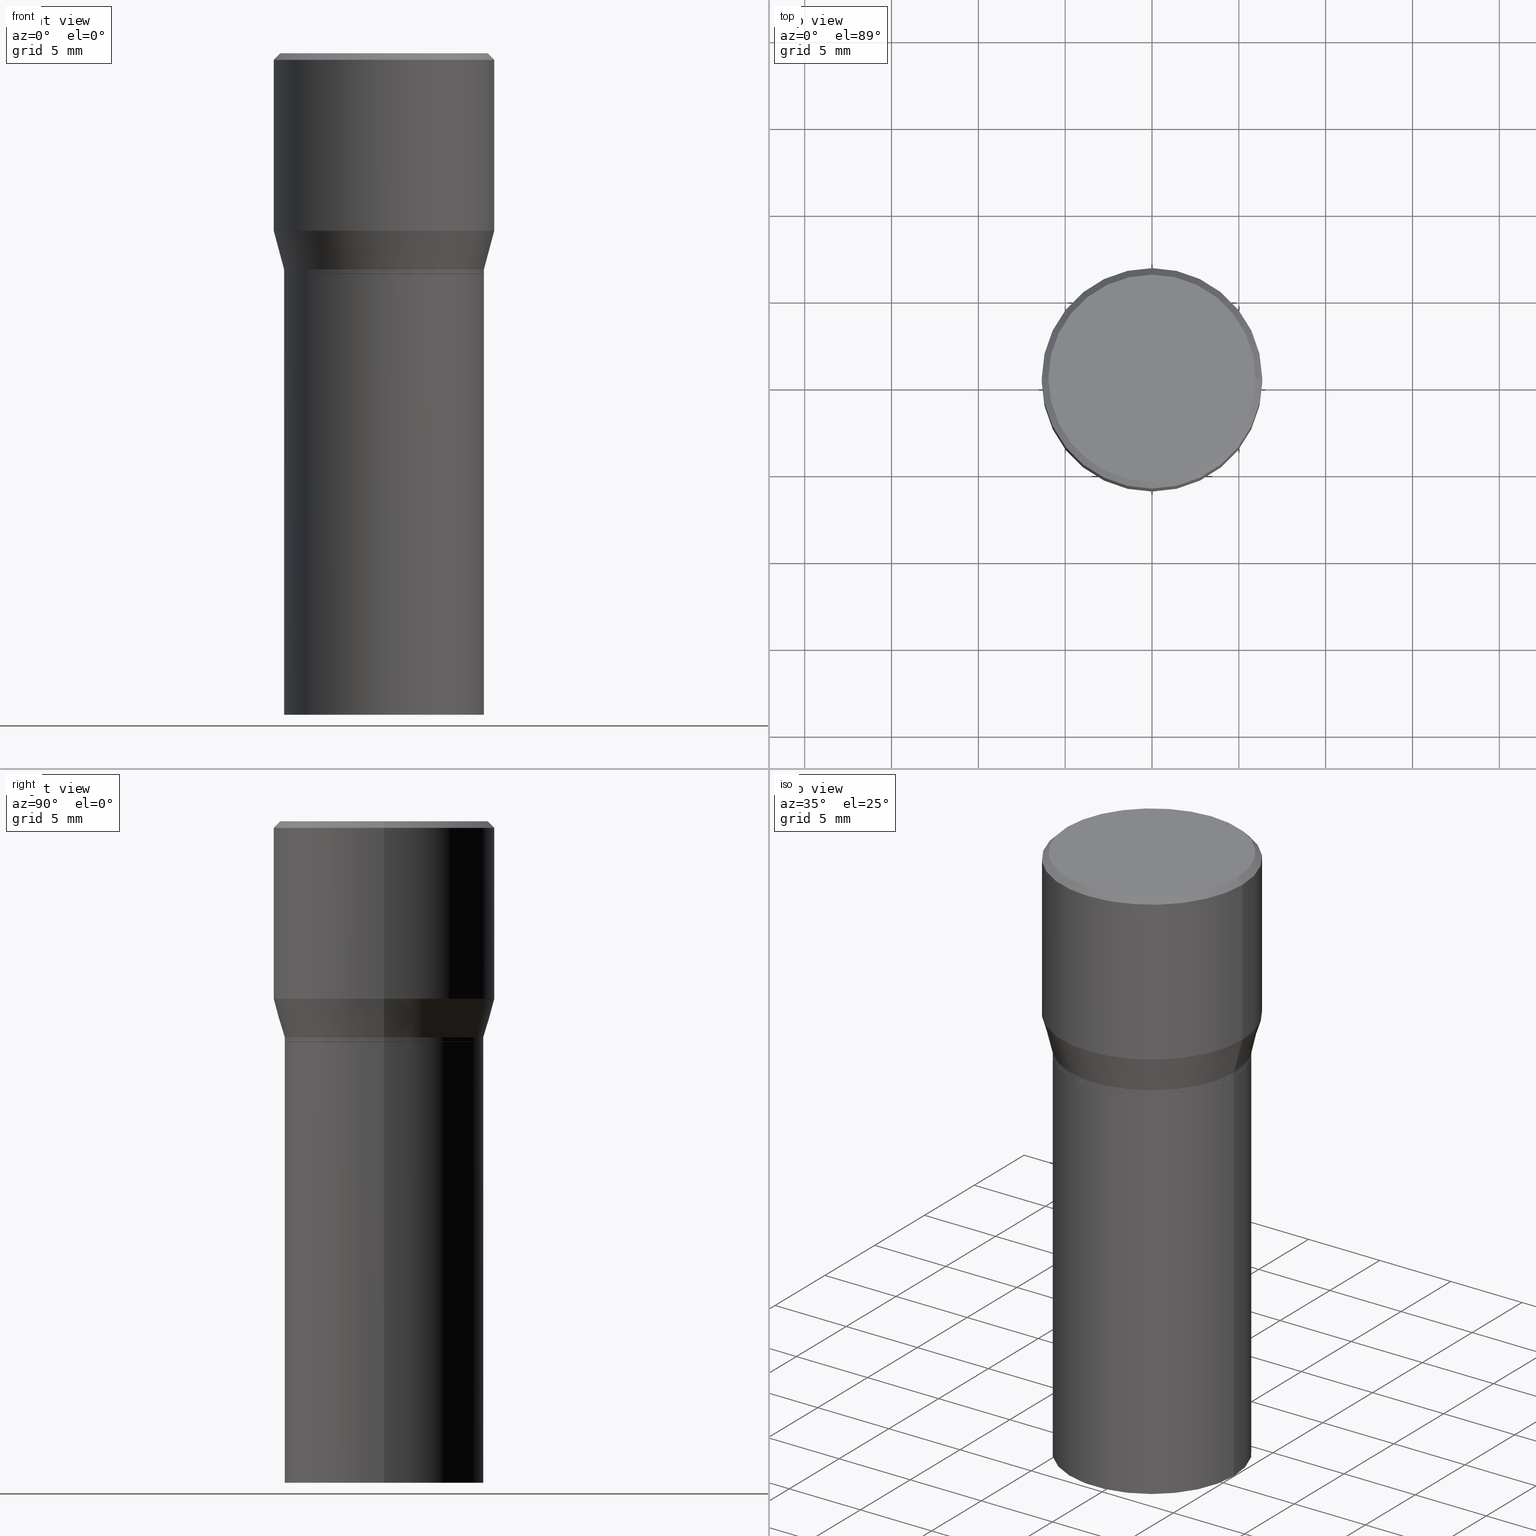
[diagram: canonical four-view strip — front | top / right | iso, engineering-drawing reading convention]
A machine part, canonical four-view strip (front | top / right | iso — engineering-drawing reading convention). The complete STEP part file that produces these views, byte-faithful:
ISO-10303-21;
HEADER;
FILE_DESCRIPTION (( 'STEP AP203' ),
    '1' );
FILE_NAME ('30459.STEP',
    '2024-03-13T16:12:11',
    ( '' ),
    ( '' ),
    'SwSTEP 2.0',
    'SolidWorks 2023',
    '' );
FILE_SCHEMA (( 'CONFIG_CONTROL_DESIGN' ));
ENDSEC;

DATA;
#1 = CARTESIAN_POINT ( 'NONE',  ( 0.2260500000000000009, -3.324239382712553708E-15, -0.5000000000000001110 ) ) ;
#2 = AXIS2_PLACEMENT_3D ( 'NONE', #61, #448, #134 ) ;
#3 = AXIS2_PLACEMENT_3D ( 'NONE', #75, #293, #181 ) ;
#4 = EDGE_LOOP ( 'NONE', ( #408, #412, #331, #193 ) ) ;
#5 = LINE ( 'NONE', #297, #221 ) ;
#6 = EDGE_LOOP ( 'NONE', ( #262, #15, #439, #177 ) ) ;
#7 = CARTESIAN_POINT ( 'NONE',  ( 1.640996229256272519E-15, 0.2349999999999999867, -7.420662724610952803E-16 ) ) ;
#8 = EDGE_CURVE ( 'NONE', #74, #70, #304, .T. ) ;
#9 = ORIENTED_EDGE ( 'NONE', *, *, #217, .F. ) ;
#10 = CLOSED_SHELL ( 'NONE', ( #105, #60, #295, #374, #258, #244, #263, #151, #394, #88, #444, #201 ) ) ;
#11 = ADVANCED_BREP_SHAPE_REPRESENTATION ( '30459', ( #121, #287, #368 ), #317 ) ;
#12 = EDGE_CURVE ( 'NONE', #446, #365, #259, .T. ) ;
#13 = ORIENTED_EDGE ( 'NONE', *, *, #194, .T. ) ;
#14 = ORIENTED_EDGE ( 'NONE', *, *, #270, .F. ) ;
#15 = ORIENTED_EDGE ( 'NONE', *, *, #275, .T. ) ;
#16 = AXIS2_PLACEMENT_3D ( 'NONE', #312, #129, #276 ) ;
#17 = ORIENTED_EDGE ( 'NONE', *, *, #192, .T. ) ;
#18 = PRODUCT_DEFINITION_FORMATION_WITH_SPECIFIED_SOURCE ( 'ANY', '', #286, .NOT_KNOWN. ) ;
#19 = CC_DESIGN_PERSON_AND_ORGANIZATION_ASSIGNMENT ( #32, #318, ( #261 ) ) ;
#20 = DIRECTION ( 'NONE',  ( -2.445468806185136597E-29, 3.491481338843145583E-15, 1.000000000000000000 ) ) ;
#21 = DIRECTION ( 'NONE',  ( -2.445468806185136597E-29, 3.491481338843145583E-15, 1.000000000000000000 ) ) ;
#22 = DIRECTION ( 'NONE',  ( -1.000000000000000000, 6.982962677686266711E-15, 0.000000000000000000 ) ) ;
#23 = APPROVAL_DATE_TIME ( #98, #268 ) ;
#24 = APPROVAL_ROLE ( '' ) ;
#25 = DIRECTION ( 'NONE',  ( 1.000000000000000000, -6.982962677686265922E-15, 0.000000000000000000 ) ) ;
#26 = VECTOR ( 'NONE', #380, 39.37007874015748143 ) ;
#27 = PERSON_AND_ORGANIZATION ( #29, #426 ) ;
#28 = DIRECTION ( 'NONE',  ( 1.000000000000000000, -6.982962677686267499E-15, 4.878549297894958458E-29 ) ) ;
#29 = PERSON ( 'UNSPECIFIED', 'UNSPECIFIED', 'UNSPECIFIED', ('UNSPECIFIED'), ('UNSPECIFIED'), ('UNSPECIFIED') ) ;
#30 = SHAPE_DEFINITION_REPRESENTATION ( #207, #11 ) ;
#31 = FACE_OUTER_BOUND ( 'NONE', #409, .T. ) ;
#32 = PERSON_AND_ORGANIZATION ( #29, #426 ) ;
#33 = CARTESIAN_POINT ( 'NONE',  ( 0.000000000000000000, 0.000000000000000000, 0.000000000000000000 ) ) ;
#34 = DIRECTION ( 'NONE',  ( 1.000000000000000000, -6.982962677686265922E-15, 0.000000000000000000 ) ) ;
#35 = CC_DESIGN_SECURITY_CLASSIFICATION ( #261, ( #18 ) ) ;
#36 = LENGTH_MEASURE_WITH_UNIT ( LENGTH_MEASURE( 0.02539999999999999897 ), #358 );
#37 = CARTESIAN_POINT ( 'NONE',  ( 1.221511668689476057E-29, -1.743994928752151682E-15, -0.4995000000000001661 ) ) ;
#38 = EDGE_LOOP ( 'NONE', ( #13, #249, #158, #14 ) ) ;
#39 = DIRECTION ( 'NONE',  ( -1.000000000000000000, 6.982962677686265922E-15, -4.876176775795935793E-29 ) ) ;
#40 = DIRECTION ( 'NONE',  ( 2.438088387897960049E-29, -3.491481338843145188E-15, -1.000000000000000000 ) ) ;
#41 = DIRECTION ( 'NONE',  ( 1.000000000000000000, -6.982962677686267499E-15, 0.000000000000000000 ) ) ;
#42 = DIRECTION ( 'NONE',  ( 1.000000000000000000, -6.982962677686265922E-15, 0.000000000000000000 ) ) ;
#43 = EDGE_LOOP ( 'NONE', ( #376, #9, #161, #218 ) ) ;
#44 = EDGE_CURVE ( 'NONE', #231, #86, #196, .T. ) ;
#45 = ORIENTED_EDGE ( 'NONE', *, *, #53, .F. ) ;
#46 = ORIENTED_EDGE ( 'NONE', *, *, #69, .T. ) ;
#47 = CIRCLE ( 'NONE', #375, 0.2500000000000000000 ) ;
#48 = VECTOR ( 'NONE', #240, 39.37007874015748143 ) ;
#49 = ORIENTED_EDGE ( 'NONE', *, *, #361, .T. ) ;
#50 = ORIENTED_EDGE ( 'NONE', *, *, #127, .F. ) ;
#51 = ORIENTED_EDGE ( 'NONE', *, *, #182, .F. ) ;
#52 = CARTESIAN_POINT ( 'NONE',  ( 0.2265500000000000014, -1.581990194629823726E-15, 1.104697848556569281E-29 ) ) ;
#53 = EDGE_CURVE ( 'NONE', #74, #337, #82, .T. ) ;
#54 = DIRECTION ( 'NONE',  ( 1.000000000000000000, -6.982962677686266711E-15, 0.000000000000000000 ) ) ;
#55 = EDGE_CURVE ( 'NONE', #431, #81, #47, .T. ) ;
#56 = COORDINATED_UNIVERSAL_TIME_OFFSET ( 5, 0, .BEHIND. ) ;
#57 = DIRECTION ( 'NONE',  ( -2.445468806185136597E-29, 3.491481338843145583E-15, 1.000000000000000000 ) ) ;
#58 = VECTOR ( 'NONE', #418, 39.37007874015748143 ) ;
#59 = DATE_AND_TIME ( #96, #188 ) ;
#60 = ADVANCED_FACE ( 'NONE', ( #165 ), #433, .T. ) ;
#61 = CARTESIAN_POINT ( 'NONE',  ( 3.668203209277705088E-31, -5.237222008264718399E-17, -0.01499999999999999944 ) ) ;
#62 = CARTESIAN_POINT ( 'NONE',  ( -0.2349999999999999867, 1.667182339297596256E-15, 1.568636843340762393E-16 ) ) ;
#63 = DESIGN_CONTEXT ( 'detailed design', #464, 'design' ) ;
#64 = DIRECTION ( 'NONE',  ( 0.7071067811865715536, -2.468850131082509496E-15, 0.7071067811865232589 ) ) ;
#65 = CARTESIAN_POINT ( 'NONE',  ( 1.221511668689476057E-29, -1.743994928752151682E-15, -0.4995000000000001661 ) ) ;
#66 = ORIENTED_EDGE ( 'NONE', *, *, #217, .T. ) ;
#67 = DIRECTION ( 'NONE',  ( 1.000000000000000000, -6.982962677686265922E-15, 0.000000000000000000 ) ) ;
#68 = CIRCLE ( 'NONE', #453, 0.2265499999999999736 ) ;
#69 = EDGE_CURVE ( 'NONE', #86, #310, #227, .T. ) ;
#70 = VERTEX_POINT ( 'NONE', #352 ) ;
#71 = DIRECTION ( 'NONE',  ( -2.445468806185136597E-29, 3.491481338843145583E-15, 1.000000000000000000 ) ) ;
#72 = EDGE_LOOP ( 'NONE', ( #230, #223 ) ) ;
#73 = CARTESIAN_POINT ( 'NONE',  ( -0.2265500000000000014, -1.881746770978639193E-15, -0.5000000000000001110 ) ) ;
#74 = VERTEX_POINT ( 'NONE', #99 ) ;
#75 = CARTESIAN_POINT ( 'NONE',  ( 0.000000000000000000, 0.000000000000000000, 0.000000000000000000 ) ) ;
#76 = VECTOR ( 'NONE', #225, 39.37007874015748143 ) ;
#77 = CIRCLE ( 'NONE', #316, 0.2500000000000000000 ) ;
#78 = ORIENTED_EDGE ( 'NONE', *, *, #44, .F. ) ;
#79 = CC_DESIGN_PERSON_AND_ORGANIZATION_ASSIGNMENT ( #393, #350, ( #18 ) ) ;
#80 = ORIENTED_EDGE ( 'NONE', *, *, #361, .F. ) ;
#81 = VERTEX_POINT ( 'NONE', #200 ) ;
#82 = CIRCLE ( 'NONE', #315, 0.2349999999999999867 ) ;
#83 = AXIS2_PLACEMENT_3D ( 'NONE', #363, #366, #39 ) ;
#84 = LOCAL_TIME ( 12, 12, 11.00000000000000000, #56 ) ;
#85 = ORIENTED_EDGE ( 'NONE', *, *, #170, .T. ) ;
#86 = VERTEX_POINT ( 'NONE', #425 ) ;
#87 = ORIENTED_EDGE ( 'NONE', *, *, #69, .F. ) ;
#88 = ADVANCED_FACE ( 'NONE', ( #31 ), #234, .F. ) ;
#89 = DIRECTION ( 'NONE',  ( 1.000000000000000000, -6.982962677686266711E-15, 0.000000000000000000 ) ) ;
#90 = CALENDAR_DATE ( 2024, 13, 3 ) ;
#91 = LINE ( 'NONE', #383, #123 ) ;
#92 = CARTESIAN_POINT ( 'NONE',  ( -0.2265499999999999736, 1.350011205208151600E-16, -0.4900000000000001021 ) ) ;
#93 = PERSON_AND_ORGANIZATION_ROLE ( 'design_supplier' ) ;
#94 = EDGE_CURVE ( 'NONE', #185, #70, #205, .T. ) ;
#95 = CARTESIAN_POINT ( 'NONE',  ( 3.668203209277705088E-31, -5.237222008264718399E-17, -0.01499999999999999944 ) ) ;
#96 = CALENDAR_DATE ( 2024, 13, 3 ) ;
#97 = FACE_OUTER_BOUND ( 'NONE', #445, .T. ) ;
#98 = DATE_AND_TIME ( #288, #84 ) ;
#99 = CARTESIAN_POINT ( 'NONE',  ( 0.2349999999999999867, -1.689856874500919833E-15, 1.568636843340994368E-16 ) ) ;
#100 = AXIS2_PLACEMENT_3D ( 'NONE', #113, #401, #34 ) ;
#101 = PERSON_AND_ORGANIZATION ( #29, #426 ) ;
#102 = LINE ( 'NONE', #274, #58 ) ;
#103 = CARTESIAN_POINT ( 'NONE',  ( -0.2500000000000000000, 1.047539074263934229E-15, -0.01499999999999999944 ) ) ;
#104 = DIRECTION ( 'NONE',  ( 1.000000000000000000, -6.982962677686266711E-15, 0.000000000000000000 ) ) ;
#105 = ADVANCED_FACE ( 'NONE', ( #239 ), #136, .T. ) ;
#106 = DIRECTION ( 'NONE',  ( 2.445468806185136597E-29, -3.491481338843145583E-15, -1.000000000000000000 ) ) ;
#107 = FACE_OUTER_BOUND ( 'NONE', #6, .T. ) ;
#108 = EDGE_LOOP ( 'NONE', ( #50, #441, #122, #326 ) ) ;
#109 = VECTOR ( 'NONE', #64, 39.37007874015748854 ) ;
#110 = DIRECTION ( 'NONE',  ( 0.2588190451025214611, 1.565188264969621573E-15, 0.9659258262890682012 ) ) ;
#111 = AXIS2_PLACEMENT_3D ( 'NONE', #219, #115, #435 ) ;
#112 = PLANE ( 'NONE',  #392 ) ;
#113 = CARTESIAN_POINT ( 'NONE',  ( 9.842606206466859638E-30, -1.405263310189985589E-15, -0.4024834085625100810 ) ) ;
#114 = EDGE_CURVE ( 'NONE', #81, #185, #102, .T. ) ;
#115 = DIRECTION ( 'NONE',  ( -2.445468806185136597E-29, 3.491481338843145583E-15, 1.000000000000000000 ) ) ;
#116 = PRODUCT_DEFINITION ( 'UNKNOWN', '', #18, #63 ) ;
#117 = AXIS2_PLACEMENT_3D ( 'NONE', #248, #303, #104 ) ;
#118 = CC_DESIGN_APPROVAL ( #163, ( #18 ) ) ;
#119 = CARTESIAN_POINT ( 'NONE',  ( 0.2500000000000000000, -1.767496719525530167E-15, -0.01499999999999999944 ) ) ;
#120 = ORIENTED_EDGE ( 'NONE', *, *, #142, .T. ) ;
#121 = MANIFOLD_SOLID_BREP ( 'Body-Move/Copy2[1]', #336 ) ;
#122 = ORIENTED_EDGE ( 'NONE', *, *, #44, .T. ) ;
#123 = VECTOR ( 'NONE', #197, 39.37007874015748143 ) ;
#124 = AXIS2_PLACEMENT_3D ( 'NONE', #247, #178, #41 ) ;
#125 = DIMENSIONAL_EXPONENTS ( 1.000000000000000000, 0.000000000000000000, 0.000000000000000000, 0.000000000000000000, 0.000000000000000000, 0.000000000000000000, 0.000000000000000000 ) ;
#126 = ORIENTED_EDGE ( 'NONE', *, *, #154, .F. ) ;
#127 = EDGE_CURVE ( 'NONE', #266, #310, #91, .T. ) ;
#128 = ORIENTED_EDGE ( 'NONE', *, *, #127, .T. ) ;
#129 = DIRECTION ( 'NONE',  ( -2.445468806185136597E-29, 3.491481338843145583E-15, 1.000000000000000000 ) ) ;
#130 = DIRECTION ( 'NONE',  ( -2.445468806185136597E-29, 3.491481338843145583E-15, 1.000000000000000000 ) ) ;
#131 = APPROVAL_PERSON_ORGANIZATION ( #277, #268, #24 ) ;
#132 = LINE ( 'NONE', #422, #26 ) ;
#133 = CALENDAR_DATE ( 2024, 13, 3 ) ;
#134 = DIRECTION ( 'NONE',  ( 1.000000000000000000, -6.982962677686266711E-15, 0.000000000000000000 ) ) ;
#135 = PERSON_AND_ORGANIZATION ( #29, #426 ) ;
#136 = CYLINDRICAL_SURFACE ( 'NONE', #328, 0.2265500000000000014 ) ;
#137 = APPROVAL_STATUS ( 'not_yet_approved' ) ;
#138 = DIRECTION ( 'NONE',  ( -2.445468806185136597E-29, 3.491481338843145583E-15, 1.000000000000000000 ) ) ;
#139 = DIRECTION ( 'NONE',  ( -0.7071067811865715536, 7.493145998870439357E-15, 0.7071067811865232589 ) ) ;
#140 = CIRCLE ( 'NONE', #267, 0.2349999999999999867 ) ;
#141 = DIRECTION ( 'NONE',  ( 1.000000000000000000, -6.982962677686266711E-15, 4.876176775795935793E-29 ) ) ;
#142 = EDGE_CURVE ( 'NONE', #310, #81, #144, .T. ) ;
#143 = FACE_OUTER_BOUND ( 'NONE', #229, .T. ) ;
#144 = LINE ( 'NONE', #436, #243 ) ;
#145 = DIRECTION ( 'NONE',  ( -2.445468806185136597E-29, 3.491481338843145583E-15, 1.000000000000000000 ) ) ;
#146 = AXIS2_PLACEMENT_3D ( 'NONE', #280, #344, #242 ) ;
#147 = AXIS2_PLACEMENT_3D ( 'NONE', #427, #211, #175 ) ;
#148 = CARTESIAN_POINT ( 'NONE',  ( 0.2265500000000000014, -3.325985123381975211E-15, -0.4995000000000001661 ) ) ;
#149 = DIRECTION ( 'NONE',  ( 1.000000000000000000, -6.982962677686265922E-15, 4.876176775795935793E-29 ) ) ;
#150 = CARTESIAN_POINT ( 'NONE',  ( 0.000000000000000000, 0.000000000000000000, 0.000000000000000000 ) ) ;
#151 = ADVANCED_FACE ( 'NONE', ( #371 ), #206, .T. ) ;
#152 = CARTESIAN_POINT ( 'NONE',  ( -0.2265500000000000014, -1.342603608876448985E-16, -0.4995000000000001661 ) ) ;
#153 = DIRECTION ( 'NONE',  ( -1.000000000000000000, 6.982962677686265922E-15, -4.876176775795935793E-29 ) ) ;
#154 = EDGE_CURVE ( 'NONE', #81, #431, #348, .T. ) ;
#155 = ORIENTED_EDGE ( 'NONE', *, *, #308, .T. ) ;
#156 = AXIS2_PLACEMENT_3D ( 'NONE', #202, #20, #89 ) ;
#157 = APPROVAL_PERSON_ORGANIZATION ( #273, #163, #245 ) ;
#158 = ORIENTED_EDGE ( 'NONE', *, *, #174, .F. ) ;
#159 = CARTESIAN_POINT ( 'NONE',  ( 0.000000000000000000, 0.000000000000000000, 0.000000000000000000 ) ) ;
#160 = VERTEX_POINT ( 'NONE', #73 ) ;
#161 = ORIENTED_EDGE ( 'NONE', *, *, #182, .T. ) ;
#162 = ORIENTED_EDGE ( 'NONE', *, *, #311, .T. ) ;
#163 = APPROVAL ( #137, 'UNSPECIFIED' ) ;
#164 = DIRECTION ( 'NONE',  ( 1.000000000000000000, -6.982962677686267499E-15, 0.000000000000000000 ) ) ;
#165 = FACE_OUTER_BOUND ( 'NONE', #306, .T. ) ;
#166 = CALENDAR_DATE ( 2024, 13, 3 ) ;
#167 = DIRECTION ( 'NONE',  ( 1.000000000000000000, 0.000000000000000000, 0.000000000000000000 ) ) ;
#168 = FACE_OUTER_BOUND ( 'NONE', #191, .T. ) ;
#169 = DIRECTION ( 'NONE',  ( -0.7071067811865441310, 2.468850131082221167E-15, -0.7071067811865509034 ) ) ;
#170 = EDGE_CURVE ( 'NONE', #231, #266, #333, .T. ) ;
#171 = CIRCLE ( 'NONE', #156, 0.2260500000000000009 ) ;
#172 = LINE ( 'NONE', #432, #235 ) ;
#173 =( NAMED_UNIT ( * ) PLANE_ANGLE_UNIT ( ) SI_UNIT ( $, .RADIAN. ) );
#174 = EDGE_CURVE ( 'NONE', #271, #160, #278, .T. ) ;
#175 = DIRECTION ( 'NONE',  ( 1.000000000000000000, -6.982962677686265922E-15, 0.000000000000000000 ) ) ;
#176 = CARTESIAN_POINT ( 'NONE',  ( 0.000000000000000000, 0.000000000000000000, 0.000000000000000000 ) ) ;
#177 = ORIENTED_EDGE ( 'NONE', *, *, #450, .F. ) ;
#178 = DIRECTION ( 'NONE',  ( -2.445468806185136597E-29, 3.491481338843145583E-15, 1.000000000000000000 ) ) ;
#179 =( CONVERSION_BASED_UNIT ( 'INCH', #36 ) LENGTH_UNIT ( ) NAMED_UNIT ( #125 ) );
#180 = AXIS2_PLACEMENT_3D ( 'NONE', #65, #145, #42 ) ;
#181 = DIRECTION ( 'NONE',  ( 1.000000000000000000, -6.982962677686266711E-15, 4.876176775795935793E-29 ) ) ;
#182 = EDGE_CURVE ( 'NONE', #337, #185, #5, .T. ) ;
#183 = ORIENTED_EDGE ( 'NONE', *, *, #388, .F. ) ;
#184 = EDGE_CURVE ( 'NONE', #86, #431, #172, .T. ) ;
#185 = VERTEX_POINT ( 'NONE', #103 ) ;
#186 = CYLINDRICAL_SURFACE ( 'NONE', #405, 0.2500000000000000000 ) ;
#187 = CONICAL_SURFACE ( 'NONE', #147, 0.2265499999999999736, 0.2617993877991501295 ) ;
#188 = LOCAL_TIME ( 12, 12, 11.00000000000000000, #452 ) ;
#189 = ADVANCED_FACE ( 'NONE', ( #460 ), #254, .F. ) ;
#190 = VERTEX_POINT ( 'NONE', #462 ) ;
#191 = EDGE_LOOP ( 'NONE', ( #443, #269, #80, #183 ) ) ;
#192 = EDGE_CURVE ( 'NONE', #160, #271, #321, .T. ) ;
#193 = ORIENTED_EDGE ( 'NONE', *, *, #94, .F. ) ;
#194 = EDGE_CURVE ( 'NONE', #365, #446, #290, .T. ) ;
#195 = VECTOR ( 'NONE', #466, 39.37007874015748143 ) ;
#196 = LINE ( 'NONE', #52, #338 ) ;
#197 = DIRECTION ( 'NONE',  ( -2.445468806185136877E-29, 3.491481338843145188E-15, 1.000000000000000000 ) ) ;
#198 = DIRECTION ( 'NONE',  ( 1.000000000000000000, -6.982962677686266711E-15, 4.876176775795935793E-29 ) ) ;
#199 = APPROVAL_STATUS ( 'not_yet_approved' ) ;
#200 = CARTESIAN_POINT ( 'NONE',  ( -0.2500000000000000000, 3.710935292102651716E-16, -0.4024834085625100810 ) ) ;
#201 = ADVANCED_FACE ( 'NONE', ( #404 ), #327, .T. ) ;
#202 = CARTESIAN_POINT ( 'NONE',  ( 1.222734403092568719E-29, -1.745740669421573186E-15, -0.5000000000000001110 ) ) ;
#203 = APPLICATION_PROTOCOL_DEFINITION ( 'international standard', 'config_control_design', 1994, #442 ) ;
#204 = LINE ( 'NONE', #384, #48 ) ;
#205 = CIRCLE ( 'NONE', #2, 0.2500000000000000000 ) ;
#206 = CONICAL_SURFACE ( 'NONE', #339, 0.2500000000000000000, 0.7853981633974435050 ) ;
#207 = PRODUCT_DEFINITION_SHAPE ( 'NONE', 'NONE',  #116 ) ;
#208 = DATE_TIME_ROLE ( 'creation_date' ) ;
#209 = DIRECTION ( 'NONE',  ( 1.000000000000000000, -6.982962677686266711E-15, 4.876176775795935793E-29 ) ) ;
#210 = CARTESIAN_POINT ( 'NONE',  ( -0.2260500000000000009, -1.395588152358667583E-16, -0.5000000000000001110 ) ) ;
#211 = DIRECTION ( 'NONE',  ( -2.445468806185136597E-29, 3.491481338843145583E-15, 1.000000000000000000 ) ) ;
#212 = DIRECTION ( 'NONE',  ( -2.438088387897960049E-29, 3.491481338843145188E-15, 1.000000000000000000 ) ) ;
#213 = CONICAL_SURFACE ( 'NONE', #359, 0.2265499999999999736, 0.2617993877991501295 ) ;
#214 = FACE_OUTER_BOUND ( 'NONE', #4, .T. ) ;
#215 = DIRECTION ( 'NONE',  ( -2.445468806185136597E-29, 3.491481338843145583E-15, 1.000000000000000000 ) ) ;
#216 = DIRECTION ( 'NONE',  ( 1.000000000000000000, -6.982962677686266711E-15, 0.000000000000000000 ) ) ;
#217 = EDGE_CURVE ( 'NONE', #337, #74, #140, .T. ) ;
#218 = ORIENTED_EDGE ( 'NONE', *, *, #94, .T. ) ;
#219 = CARTESIAN_POINT ( 'NONE',  ( 1.222734403092568719E-29, -1.745740669421573186E-15, -0.5000000000000001110 ) ) ;
#220 = ORIENTED_EDGE ( 'NONE', *, *, #142, .F. ) ;
#221 = VECTOR ( 'NONE', #169, 39.37007874015748143 ) ;
#222 = LINE ( 'NONE', #396, #195 ) ;
#223 = ORIENTED_EDGE ( 'NONE', *, *, #12, .F. ) ;
#224 = EDGE_CURVE ( 'NONE', #253, #231, #465, .T. ) ;
#225 = DIRECTION ( 'NONE',  ( 0.7071067811865441310, -7.319954787623245001E-15, -0.7071067811865509034 ) ) ;
#226 = EDGE_LOOP ( 'NONE', ( #85, #128, #87, #78 ) ) ;
#227 = CIRCLE ( 'NONE', #299, 0.2265499999999999736 ) ;
#228 = AXIS2_PLACEMENT_3D ( 'NONE', #298, #212, #149 ) ;
#229 = EDGE_LOOP ( 'NONE', ( #46, #120, #309, #447 ) ) ;
#230 = ORIENTED_EDGE ( 'NONE', *, *, #194, .F. ) ;
#231 = VERTEX_POINT ( 'NONE', #148 ) ;
#232 = CARTESIAN_POINT ( 'NONE',  ( 1.198279715030717173E-29, -1.710825856033141537E-15, -0.4900000000000001021 ) ) ;
#233 = COORDINATED_UNIVERSAL_TIME_OFFSET ( 5, 0, .BEHIND. ) ;
#234 = PLANE ( 'NONE',  #146 ) ;
#235 = VECTOR ( 'NONE', #110, 39.37007874015747433 ) ;
#236 = DIRECTION ( 'NONE',  ( -2.445468806185136597E-29, 3.491481338843145583E-15, 1.000000000000000000 ) ) ;
#237 = ADVANCED_FACE ( 'NONE', ( #330 ), #300, .T. ) ;
#238 = PERSON_AND_ORGANIZATION_ROLE ( 'creator' ) ;
#239 = FACE_OUTER_BOUND ( 'NONE', #226, .T. ) ;
#240 = DIRECTION ( 'NONE',  ( -2.445468806185136877E-29, 3.491481338843145188E-15, 1.000000000000000000 ) ) ;
#241 = APPROVAL_ROLE ( '' ) ;
#242 = DIRECTION ( 'NONE',  ( 1.000000000000000000, -6.982962677686265922E-15, 4.876176775795935793E-29 ) ) ;
#243 = VECTOR ( 'NONE', #360, 39.37007874015747433 ) ;
#244 = ADVANCED_FACE ( 'NONE', ( #291 ), #187, .T. ) ;
#245 = APPROVAL_ROLE ( '' ) ;
#246 = DIRECTION ( 'NONE',  ( 1.000000000000000000, -6.982962677686266711E-15, 0.000000000000000000 ) ) ;
#247 = CARTESIAN_POINT ( 'NONE',  ( 3.668203209277704895E-29, -5.237222008264718177E-15, -1.500000000000000222 ) ) ;
#248 = CARTESIAN_POINT ( 'NONE',  ( 1.222734403092568719E-29, -1.745740669421573186E-15, -0.5000000000000001110 ) ) ;
#249 = ORIENTED_EDGE ( 'NONE', *, *, #357, .T. ) ;
#250 = DIRECTION ( 'NONE',  ( 1.000000000000000000, -6.982962677686265922E-15, 0.000000000000000000 ) ) ;
#251 = AXIS2_PLACEMENT_3D ( 'NONE', #95, #342, #22 ) ;
#252 = LOCAL_TIME ( 12, 12, 11.00000000000000000, #233 ) ;
#253 = VERTEX_POINT ( 'NONE', #356 ) ;
#254 = PLANE ( 'NONE',  #83 ) ;
#255 = CYLINDRICAL_SURFACE ( 'NONE', #260, 0.2500000000000000000 ) ;
#256 = CARTESIAN_POINT ( 'NONE',  ( 3.668203209277705088E-31, -5.237222008264718399E-17, -0.01499999999999999944 ) ) ;
#257 = DIRECTION ( 'NONE',  ( -1.000000000000000000, 6.982962677686266711E-15, 0.000000000000000000 ) ) ;
#258 = ADVANCED_FACE ( 'NONE', ( #143 ), #213, .T. ) ;
#259 = CIRCLE ( 'NONE', #451, 0.2265500000000000014 ) ;
#260 = AXIS2_PLACEMENT_3D ( 'NONE', #176, #367, #325 ) ;
#261 = SECURITY_CLASSIFICATION ( '', '', #314 ) ;
#262 = ORIENTED_EDGE ( 'NONE', *, *, #311, .F. ) ;
#263 = ADVANCED_FACE ( 'NONE', ( #214 ), #186, .T. ) ;
#264 = EDGE_LOOP ( 'NONE', ( #66, #378 ) ) ;
#265 = DIRECTION ( 'NONE',  ( -2.445468806185136597E-29, 3.491481338843145583E-15, 1.000000000000000000 ) ) ;
#266 = VERTEX_POINT ( 'NONE', #152 ) ;
#267 = AXIS2_PLACEMENT_3D ( 'NONE', #320, #324, #322 ) ;
#268 = APPROVAL ( #199, 'UNSPECIFIED' ) ;
#269 = ORIENTED_EDGE ( 'NONE', *, *, #114, .T. ) ;
#270 = EDGE_CURVE ( 'NONE', #365, #271, #132, .T. ) ;
#271 = VERTEX_POINT ( 'NONE', #272 ) ;
#272 = CARTESIAN_POINT ( 'NONE',  ( 0.2265500000000000014, -3.327730864051397109E-15, -0.5000000000000001110 ) ) ;
#273 = PERSON_AND_ORGANIZATION ( #29, #426 ) ;
#274 = CARTESIAN_POINT ( 'NONE',  ( -0.2500000000000000000, 1.776356839400250465E-15, -1.229733772563726445E-29 ) ) ;
#275 = EDGE_CURVE ( 'NONE', #190, #253, #171, .T. ) ;
#276 = DIRECTION ( 'NONE',  ( 1.000000000000000000, -6.982962677686266711E-15, 0.000000000000000000 ) ) ;
#277 = PERSON_AND_ORGANIZATION ( #29, #426 ) ;
#278 = CIRCLE ( 'NONE', #420, 0.2265500000000000014 ) ;
#279 = DATE_AND_TIME ( #90, #252 ) ;
#280 = CARTESIAN_POINT ( 'NONE',  ( 1.222734403092568719E-29, -1.745740669421573186E-15, -0.5000000000000001110 ) ) ;
#281 = EDGE_CURVE ( 'NONE', #310, #86, #68, .T. ) ;
#282 = CYLINDRICAL_SURFACE ( 'NONE', #329, 0.2265500000000000014 ) ;
#283 = DIRECTION ( 'NONE',  ( 1.000000000000000000, -6.982962677686265922E-15, 0.000000000000000000 ) ) ;
#284 = DIRECTION ( 'NONE',  ( 0.000000000000000000, 0.000000000000000000, 1.000000000000000000 ) ) ;
#285 = CARTESIAN_POINT ( 'NONE',  ( 0.000000000000000000, 0.000000000000000000, 0.000000000000000000 ) ) ;
#286 = PRODUCT ( '30459', '30459', '', ( #385 ) ) ;
#287 = MANIFOLD_SOLID_BREP ( 'Body-Move/Copy2[2]', #10 ) ;
#288 = CALENDAR_DATE ( 2024, 13, 3 ) ;
#289 = CARTESIAN_POINT ( 'NONE',  ( 9.842606206466859638E-30, -1.405263310189985589E-15, -0.4024834085625100810 ) ) ;
#290 = CIRCLE ( 'NONE', #124, 0.2265500000000000014 ) ;
#291 = FACE_OUTER_BOUND ( 'NONE', #413, .T. ) ;
#292 = PRODUCT_RELATED_PRODUCT_CATEGORY ( 'detail', '', ( #286 ) ) ;
#293 = DIRECTION ( 'NONE',  ( -2.445468806185136597E-29, 3.491481338843145583E-15, 1.000000000000000000 ) ) ;
#294 = FACE_OUTER_BOUND ( 'NONE', #264, .T. ) ;
#295 = ADVANCED_FACE ( 'NONE', ( #97 ), #440, .T. ) ;
#296 = ORIENTED_EDGE ( 'NONE', *, *, #12, .T. ) ;
#297 = CARTESIAN_POINT ( 'NONE',  ( -0.2500000000000000000, 1.693368449338919401E-15, -0.01499999999999999944 ) ) ;
#298 = CARTESIAN_POINT ( 'NONE',  ( 3.576687321579069994E-29, -5.368277968210015545E-15, -1.500000000000000222 ) ) ;
#299 = AXIS2_PLACEMENT_3D ( 'NONE', #421, #130, #386 ) ;
#300 = CYLINDRICAL_SURFACE ( 'NONE', #305, 0.2265500000000000014 ) ;
#301 = DIRECTION ( 'NONE',  ( -2.445468806185136597E-29, 3.491481338843145583E-15, 1.000000000000000000 ) ) ;
#302 = ORIENTED_EDGE ( 'NONE', *, *, #184, .T. ) ;
#303 = DIRECTION ( 'NONE',  ( -2.445468806185136597E-29, 3.491481338843145583E-15, 1.000000000000000000 ) ) ;
#304 = LINE ( 'NONE', #119, #76 ) ;
#305 = AXIS2_PLACEMENT_3D ( 'NONE', #150, #301, #141 ) ;
#306 = EDGE_LOOP ( 'NONE', ( #155, #162, #373, #400 ) ) ;
#307 = EDGE_LOOP ( 'NONE', ( #402, #17 ) ) ;
#308 = EDGE_CURVE ( 'NONE', #253, #190, #461, .T. ) ;
#309 = ORIENTED_EDGE ( 'NONE', *, *, #55, .F. ) ;
#310 = VERTEX_POINT ( 'NONE', #92 ) ;
#311 = EDGE_CURVE ( 'NONE', #190, #266, #428, .T. ) ;
#312 = CARTESIAN_POINT ( 'NONE',  ( 1.222734403092568719E-29, -1.745740669421573186E-15, -0.5000000000000001110 ) ) ;
#313 = CARTESIAN_POINT ( 'NONE',  ( -3.836052468622837406E-45, 5.476866265946494270E-31, 1.568636843340877764E-16 ) ) ;
#314 = SECURITY_CLASSIFICATION_LEVEL ( 'unclassified' ) ;
#315 = AXIS2_PLACEMENT_3D ( 'NONE', #313, #215, #28 ) ;
#316 = AXIS2_PLACEMENT_3D ( 'NONE', #387, #57, #54 ) ;
#317 =( GEOMETRIC_REPRESENTATION_CONTEXT ( 3 ) GLOBAL_UNCERTAINTY_ASSIGNED_CONTEXT ( ( #457 ) ) GLOBAL_UNIT_ASSIGNED_CONTEXT ( ( #179, #173, #463 ) ) REPRESENTATION_CONTEXT ( 'NONE', 'WORKASPACE' ) );
#318 = PERSON_AND_ORGANIZATION_ROLE ( 'classification_officer' ) ;
#319 = CC_DESIGN_PERSON_AND_ORGANIZATION_ASSIGNMENT ( #101, #238, ( #116 ) ) ;
#320 = CARTESIAN_POINT ( 'NONE',  ( -3.836052468622837406E-45, 5.476866265946494270E-31, 1.568636843340877764E-16 ) ) ;
#321 = CIRCLE ( 'NONE', #111, 0.2265500000000000014 ) ;
#322 = DIRECTION ( 'NONE',  ( 1.000000000000000000, -6.982962677686267499E-15, 4.878549297894958458E-29 ) ) ;
#323 = CARTESIAN_POINT ( 'NONE',  ( 0.2500000000000000000, -3.151003979611552069E-15, -0.4024834085625100810 ) ) ;
#324 = DIRECTION ( 'NONE',  ( -2.445468806185136597E-29, 3.491481338843145583E-15, 1.000000000000000000 ) ) ;
#325 = DIRECTION ( 'NONE',  ( 1.000000000000000000, -6.982962677686266711E-15, 4.876176775795935793E-29 ) ) ;
#326 = ORIENTED_EDGE ( 'NONE', *, *, #281, .F. ) ;
#327 = CYLINDRICAL_SURFACE ( 'NONE', #3, 0.2265500000000000014 ) ;
#328 = AXIS2_PLACEMENT_3D ( 'NONE', #285, #391, #209 ) ;
#329 = AXIS2_PLACEMENT_3D ( 'NONE', #33, #236, #198 ) ;
#330 = FACE_OUTER_BOUND ( 'NONE', #362, .T. ) ;
#331 = ORIENTED_EDGE ( 'NONE', *, *, #388, .T. ) ;
#332 = ORIENTED_EDGE ( 'NONE', *, *, #281, .T. ) ;
#333 = CIRCLE ( 'NONE', #382, 0.2265500000000000014 ) ;
#334 = ORIENTED_EDGE ( 'NONE', *, *, #308, .F. ) ;
#335 = ORIENTED_EDGE ( 'NONE', *, *, #357, .F. ) ;
#336 = CLOSED_SHELL ( 'NONE', ( #354, #458, #237, #189 ) ) ;
#337 = VERTEX_POINT ( 'NONE', #62 ) ;
#338 = VECTOR ( 'NONE', #341, 39.37007874015748143 ) ;
#339 = AXIS2_PLACEMENT_3D ( 'NONE', #256, #106, #257 ) ;
#340 = APPROVAL_PERSON_ORGANIZATION ( #135, #372, #241 ) ;
#341 = DIRECTION ( 'NONE',  ( -2.445468806185136877E-29, 3.491481338843145188E-15, 1.000000000000000000 ) ) ;
#342 = DIRECTION ( 'NONE',  ( 2.445468806185136597E-29, -3.491481338843145583E-15, -1.000000000000000000 ) ) ;
#343 = APPLICATION_PROTOCOL_DEFINITION ( 'international standard', 'config_control_design', 1994, #464 ) ;
#344 = DIRECTION ( 'NONE',  ( -2.438088387897960049E-29, 3.491481338843145188E-15, 1.000000000000000000 ) ) ;
#345 = DIRECTION ( 'NONE',  ( -2.445468806185136597E-29, 3.491481338843145583E-15, 1.000000000000000000 ) ) ;
#346 = APPROVAL_DATE_TIME ( #353, #163 ) ;
#347 = CARTESIAN_POINT ( 'NONE',  ( 1.222734403092568719E-29, -1.745740669421573186E-15, -0.5000000000000001110 ) ) ;
#348 = CIRCLE ( 'NONE', #100, 0.2500000000000000000 ) ;
#349 = CARTESIAN_POINT ( 'NONE',  ( 0.2265500000000000014, -6.819212202894542298E-15, -1.500000000000000222 ) ) ;
#350 = PERSON_AND_ORGANIZATION_ROLE ( 'creator' ) ;
#351 = CC_DESIGN_PERSON_AND_ORGANIZATION_ASSIGNMENT ( #381, #419, ( #286 ) ) ;
#352 = CARTESIAN_POINT ( 'NONE',  ( 0.2500000000000000000, -1.798112889504214151E-15, -0.01499999999999999944 ) ) ;
#353 = DATE_AND_TIME ( #133, #399 ) ;
#354 = ADVANCED_FACE ( 'NONE', ( #355 ), #282, .T. ) ;
#355 = FACE_OUTER_BOUND ( 'NONE', #38, .T. ) ;
#356 = CARTESIAN_POINT ( 'NONE',  ( 0.2260500000000000009, -3.324239382712553708E-15, -0.5000000000000001110 ) ) ;
#357 = EDGE_CURVE ( 'NONE', #446, #160, #204, .T. ) ;
#358 =( LENGTH_UNIT ( ) NAMED_UNIT ( * ) SI_UNIT ( $, .METRE. ) );
#359 = AXIS2_PLACEMENT_3D ( 'NONE', #429, #397, #67 ) ;
#360 = DIRECTION ( 'NONE',  ( -0.2588190451025214611, 5.211531920934551042E-15, 0.9659258262890682012 ) ) ;
#361 = EDGE_CURVE ( 'NONE', #70, #185, #77, .T. ) ;
#362 = EDGE_LOOP ( 'NONE', ( #335, #296, #415, #407 ) ) ;
#363 = CARTESIAN_POINT ( 'NONE',  ( 1.581990194629835559E-15, 0.2265499999999982528, -0.5000000000000009992 ) ) ;
#364 = PLANE ( 'NONE',  #228 ) ;
#365 = VERTEX_POINT ( 'NONE', #349 ) ;
#366 = DIRECTION ( 'NONE',  ( 2.438088387897960049E-29, -3.491481338843145188E-15, -1.000000000000000000 ) ) ;
#367 = DIRECTION ( 'NONE',  ( -2.445468806185136597E-29, 3.491481338843145583E-15, 1.000000000000000000 ) ) ;
#368 = AXIS2_PLACEMENT_3D ( 'NONE', #410, #284, #167 ) ;
#369 = LOCAL_TIME ( 12, 12, 11.00000000000000000, #456 ) ;
#370 = ORIENTED_EDGE ( 'NONE', *, *, #275, .F. ) ;
#371 = FACE_OUTER_BOUND ( 'NONE', #43, .T. ) ;
#372 = APPROVAL ( #417, 'UNSPECIFIED' ) ;
#373 = ORIENTED_EDGE ( 'NONE', *, *, #170, .F. ) ;
#374 = ADVANCED_FACE ( 'NONE', ( #168 ), #255, .T. ) ;
#375 = AXIS2_PLACEMENT_3D ( 'NONE', #289, #138, #25 ) ;
#376 = ORIENTED_EDGE ( 'NONE', *, *, #8, .F. ) ;
#377 = ORIENTED_EDGE ( 'NONE', *, *, #8, .T. ) ;
#378 = ORIENTED_EDGE ( 'NONE', *, *, #53, .T. ) ;
#379 = CARTESIAN_POINT ( 'NONE',  ( 3.668203209277704895E-29, -5.237222008264718177E-15, -1.500000000000000222 ) ) ;
#380 = DIRECTION ( 'NONE',  ( -2.445468806185136877E-29, 3.491481338843145188E-15, 1.000000000000000000 ) ) ;
#381 = PERSON_AND_ORGANIZATION ( #29, #426 ) ;
#382 = AXIS2_PLACEMENT_3D ( 'NONE', #37, #403, #250 ) ;
#383 = CARTESIAN_POINT ( 'NONE',  ( -0.2265500000000000014, 1.609734567864506981E-15, -1.114384744697248863E-29 ) ) ;
#384 = CARTESIAN_POINT ( 'NONE',  ( -0.2265500000000000014, 1.609734567864506981E-15, -1.114384744697248863E-29 ) ) ;
#385 = MECHANICAL_CONTEXT ( 'NONE', #442, 'mechanical' ) ;
#386 = DIRECTION ( 'NONE',  ( 1.000000000000000000, -6.982962677686265922E-15, 0.000000000000000000 ) ) ;
#387 = CARTESIAN_POINT ( 'NONE',  ( 3.668203209277705088E-31, -5.237222008264718399E-17, -0.01499999999999999944 ) ) ;
#388 = EDGE_CURVE ( 'NONE', #431, #70, #222, .T. ) ;
#389 = APPROVAL_DATE_TIME ( #279, #372 ) ;
#390 = AXIS2_PLACEMENT_3D ( 'NONE', #347, #449, #246 ) ;
#391 = DIRECTION ( 'NONE',  ( -2.445468806185136597E-29, 3.491481338843145583E-15, 1.000000000000000000 ) ) ;
#392 = AXIS2_PLACEMENT_3D ( 'NONE', #7, #40, #153 ) ;
#393 = PERSON_AND_ORGANIZATION ( #29, #426 ) ;
#394 = ADVANCED_FACE ( 'NONE', ( #294 ), #112, .F. ) ;
#395 = CARTESIAN_POINT ( 'NONE',  ( 1.222734403092568719E-29, -1.745740669421573186E-15, -0.5000000000000001110 ) ) ;
#396 = CARTESIAN_POINT ( 'NONE',  ( 0.2500000000000000000, -1.745740669421566678E-15, 1.219044193948983948E-29 ) ) ;
#397 = DIRECTION ( 'NONE',  ( -2.445468806185136597E-29, 3.491481338843145583E-15, 1.000000000000000000 ) ) ;
#398 = CONICAL_SURFACE ( 'NONE', #117, 0.2260500000000000009, 0.7853981633974824739 ) ;
#399 = LOCAL_TIME ( 12, 12, 11.00000000000000000, #459 ) ;
#400 = ORIENTED_EDGE ( 'NONE', *, *, #224, .F. ) ;
#401 = DIRECTION ( 'NONE',  ( -2.445468806185136597E-29, 3.491481338843145583E-15, 1.000000000000000000 ) ) ;
#402 = ORIENTED_EDGE ( 'NONE', *, *, #174, .T. ) ;
#403 = DIRECTION ( 'NONE',  ( -2.445468806185136597E-29, 3.491481338843145583E-15, 1.000000000000000000 ) ) ;
#404 = FACE_OUTER_BOUND ( 'NONE', #108, .T. ) ;
#405 = AXIS2_PLACEMENT_3D ( 'NONE', #159, #265, #414 ) ;
#406 = CC_DESIGN_APPROVAL ( #268, ( #116 ) ) ;
#407 = ORIENTED_EDGE ( 'NONE', *, *, #192, .F. ) ;
#408 = ORIENTED_EDGE ( 'NONE', *, *, #114, .F. ) ;
#409 = EDGE_LOOP ( 'NONE', ( #334, #370 ) ) ;
#410 = CARTESIAN_POINT ( 'NONE',  ( 0.000000000000000000, 0.000000000000000000, 0.000000000000000000 ) ) ;
#411 = VECTOR ( 'NONE', #139, 39.37007874015748854 ) ;
#412 = ORIENTED_EDGE ( 'NONE', *, *, #154, .T. ) ;
#413 = EDGE_LOOP ( 'NONE', ( #220, #332, #302, #126 ) ) ;
#414 = DIRECTION ( 'NONE',  ( 1.000000000000000000, -6.982962677686266711E-15, 4.876176775795935793E-29 ) ) ;
#415 = ORIENTED_EDGE ( 'NONE', *, *, #270, .T. ) ;
#416 = CC_DESIGN_DATE_AND_TIME_ASSIGNMENT ( #424, #208, ( #116 ) ) ;
#417 = APPROVAL_STATUS ( 'not_yet_approved' ) ;
#418 = DIRECTION ( 'NONE',  ( -2.445468806185136877E-29, 3.491481338843145188E-15, 1.000000000000000000 ) ) ;
#419 = PERSON_AND_ORGANIZATION_ROLE ( 'design_owner' ) ;
#420 = AXIS2_PLACEMENT_3D ( 'NONE', #395, #71, #216 ) ;
#421 = CARTESIAN_POINT ( 'NONE',  ( 1.198279715030717173E-29, -1.710825856033141537E-15, -0.4900000000000001021 ) ) ;
#422 = CARTESIAN_POINT ( 'NONE',  ( 0.2265500000000000014, -1.581990194629823726E-15, 1.104697848556569281E-29 ) ) ;
#423 = CC_DESIGN_PERSON_AND_ORGANIZATION_ASSIGNMENT ( #27, #93, ( #18 ) ) ;
#424 = DATE_AND_TIME ( #166, #369 ) ;
#425 = CARTESIAN_POINT ( 'NONE',  ( 0.2265499999999999736, -3.292816050662964671E-15, -0.4900000000000001021 ) ) ;
#426 = ORGANIZATION ( 'UNSPECIFIED', 'UNSPECIFIED', '' ) ;
#427 = CARTESIAN_POINT ( 'NONE',  ( 1.198279715030717173E-29, -1.710825856033141537E-15, -0.4900000000000001021 ) ) ;
#428 = LINE ( 'NONE', #210, #411 ) ;
#429 = CARTESIAN_POINT ( 'NONE',  ( 1.198279715030717173E-29, -1.710825856033141537E-15, -0.4900000000000001021 ) ) ;
#430 = FACE_OUTER_BOUND ( 'NONE', #72, .T. ) ;
#431 = VERTEX_POINT ( 'NONE', #323 ) ;
#432 = CARTESIAN_POINT ( 'NONE',  ( 0.2265499999999999736, -3.292816050662964671E-15, -0.4900000000000001021 ) ) ;
#433 = CONICAL_SURFACE ( 'NONE', #390, 0.2260500000000000009, 0.7853981633974824739 ) ;
#434 = CIRCLE ( 'NONE', #180, 0.2265500000000000014 ) ;
#435 = DIRECTION ( 'NONE',  ( 1.000000000000000000, -6.982962677686266711E-15, 0.000000000000000000 ) ) ;
#436 = CARTESIAN_POINT ( 'NONE',  ( -0.2265499999999999736, -1.010912881686348269E-16, -0.4900000000000001021 ) ) ;
#437 = CC_DESIGN_DATE_AND_TIME_ASSIGNMENT ( #59, #455, ( #261 ) ) ;
#438 = CARTESIAN_POINT ( 'NONE',  ( -0.2265500000000000014, -1.881746770978639193E-15, -1.500000000000000222 ) ) ;
#439 = ORIENTED_EDGE ( 'NONE', *, *, #224, .T. ) ;
#440 = CONICAL_SURFACE ( 'NONE', #251, 0.2500000000000000000, 0.7853981633974435050 ) ;
#441 = ORIENTED_EDGE ( 'NONE', *, *, #450, .T. ) ;
#442 = APPLICATION_CONTEXT ( 'configuration controlled 3d designs of mechanical parts and assemblies' ) ;
#443 = ORIENTED_EDGE ( 'NONE', *, *, #55, .T. ) ;
#444 = ADVANCED_FACE ( 'NONE', ( #107 ), #398, .T. ) ;
#445 = EDGE_LOOP ( 'NONE', ( #45, #377, #49, #51 ) ) ;
#446 = VERTEX_POINT ( 'NONE', #438 ) ;
#447 = ORIENTED_EDGE ( 'NONE', *, *, #184, .F. ) ;
#448 = DIRECTION ( 'NONE',  ( -2.445468806185136597E-29, 3.491481338843145583E-15, 1.000000000000000000 ) ) ;
#449 = DIRECTION ( 'NONE',  ( -2.445468806185136597E-29, 3.491481338843145583E-15, 1.000000000000000000 ) ) ;
#450 = EDGE_CURVE ( 'NONE', #266, #231, #434, .T. ) ;
#451 = AXIS2_PLACEMENT_3D ( 'NONE', #379, #21, #164 ) ;
#452 = COORDINATED_UNIVERSAL_TIME_OFFSET ( 5, 0, .BEHIND. ) ;
#453 = AXIS2_PLACEMENT_3D ( 'NONE', #232, #345, #283 ) ;
#454 = CC_DESIGN_APPROVAL ( #372, ( #261 ) ) ;
#455 = DATE_TIME_ROLE ( 'classification_date' ) ;
#456 = COORDINATED_UNIVERSAL_TIME_OFFSET ( 5, 0, .BEHIND. ) ;
#457 = UNCERTAINTY_MEASURE_WITH_UNIT (LENGTH_MEASURE( 1.000000000000000082E-05 ), #179, 'distance_accuracy_value', 'NONE');
#458 = ADVANCED_FACE ( 'NONE', ( #430 ), #364, .F. ) ;
#459 = COORDINATED_UNIVERSAL_TIME_OFFSET ( 5, 0, .BEHIND. ) ;
#460 = FACE_OUTER_BOUND ( 'NONE', #307, .T. ) ;
#461 = CIRCLE ( 'NONE', #16, 0.2260500000000000009 ) ;
#462 = CARTESIAN_POINT ( 'NONE',  ( -0.2260500000000000009, -1.369095880617559516E-16, -0.5000000000000001110 ) ) ;
#463 =( NAMED_UNIT ( * ) SI_UNIT ( $, .STERADIAN. ) SOLID_ANGLE_UNIT ( ) );
#464 = APPLICATION_CONTEXT ( 'configuration controlled 3d designs of mechanical parts and assemblies' ) ;
#465 = LINE ( 'NONE', #1, #109 ) ;
#466 = DIRECTION ( 'NONE',  ( -2.445468806185136877E-29, 3.491481338843145188E-15, 1.000000000000000000 ) ) ;
ENDSEC;
END-ISO-10303-21;
